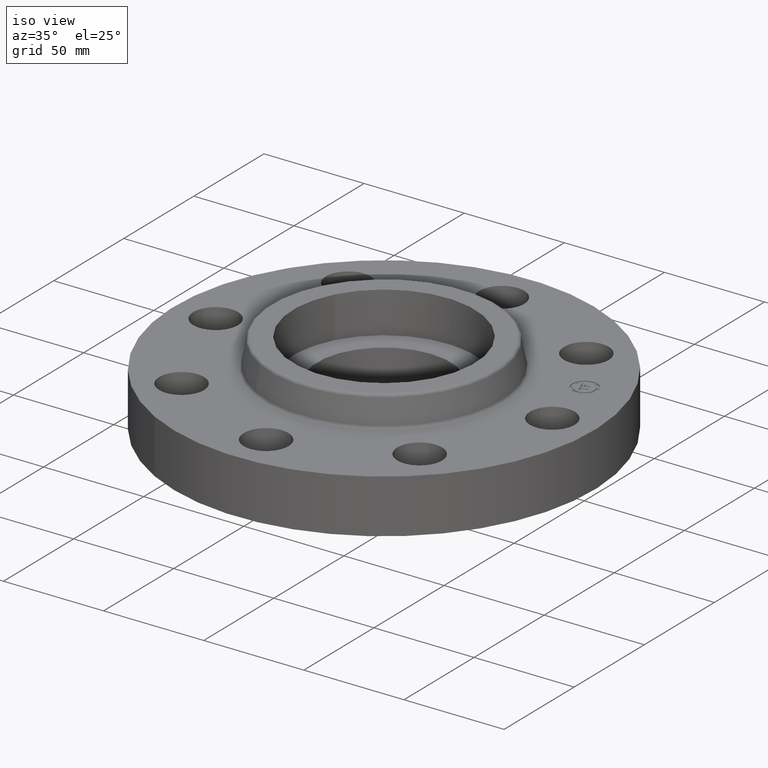
[diagram: clean part render]
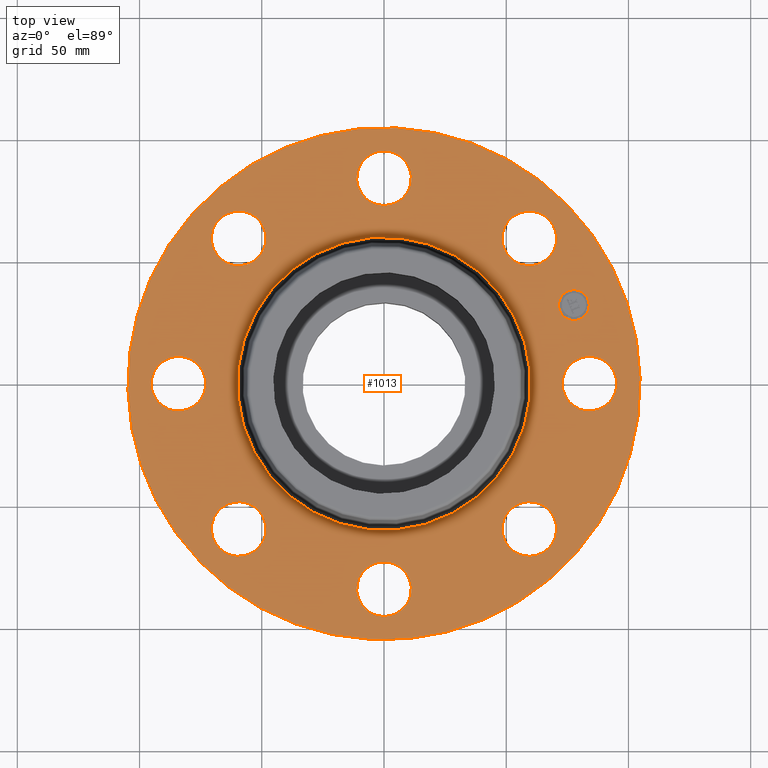
[diagram: tour spotlight — one face highlighted and labeled with its STEP entity id]
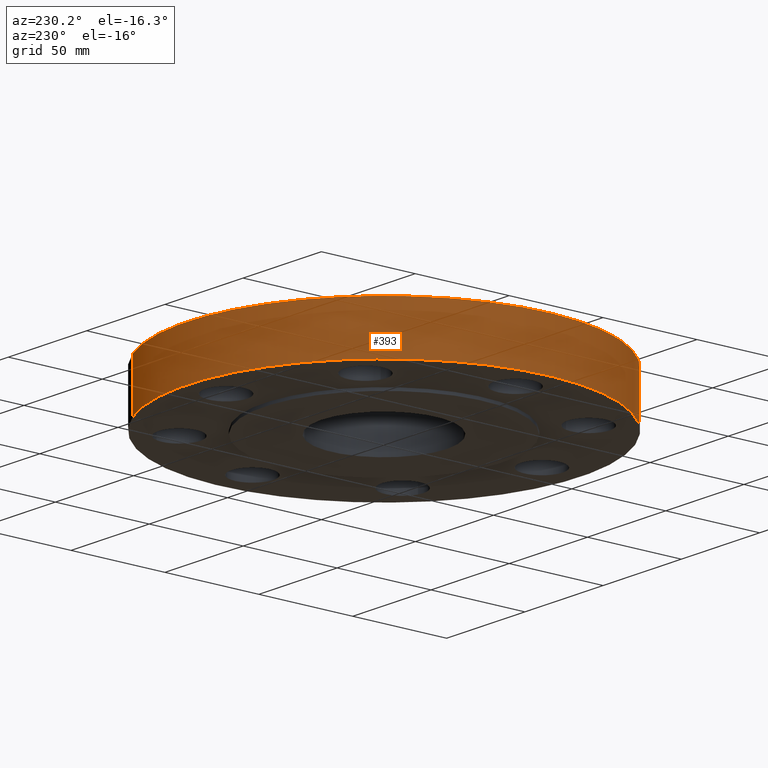
[diagram: tour spotlight — one face highlighted and labeled with its STEP entity id]
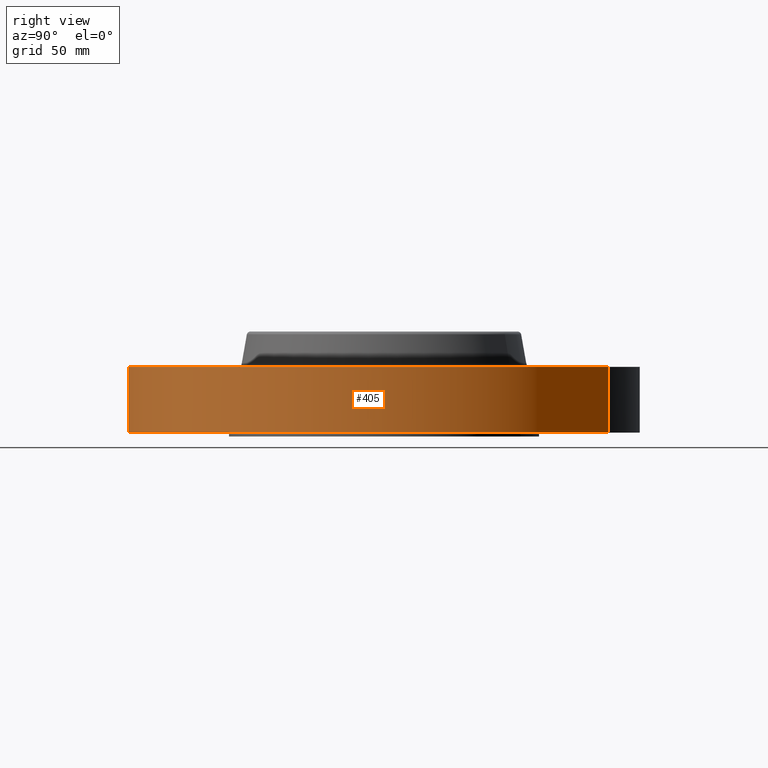
[diagram: tour spotlight — one face highlighted and labeled with its STEP entity id]
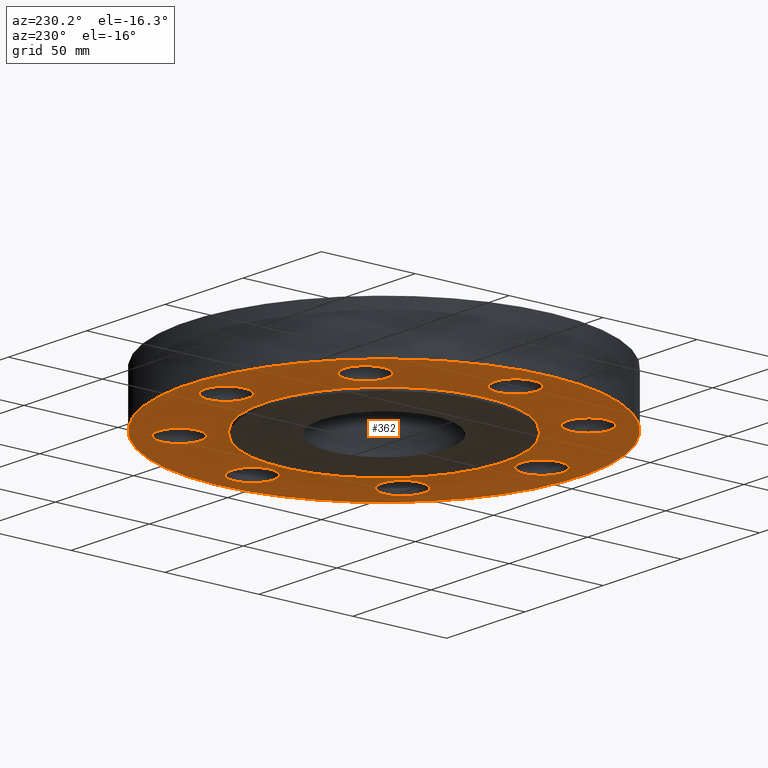
[diagram: tour spotlight — one face highlighted and labeled with its STEP entity id]
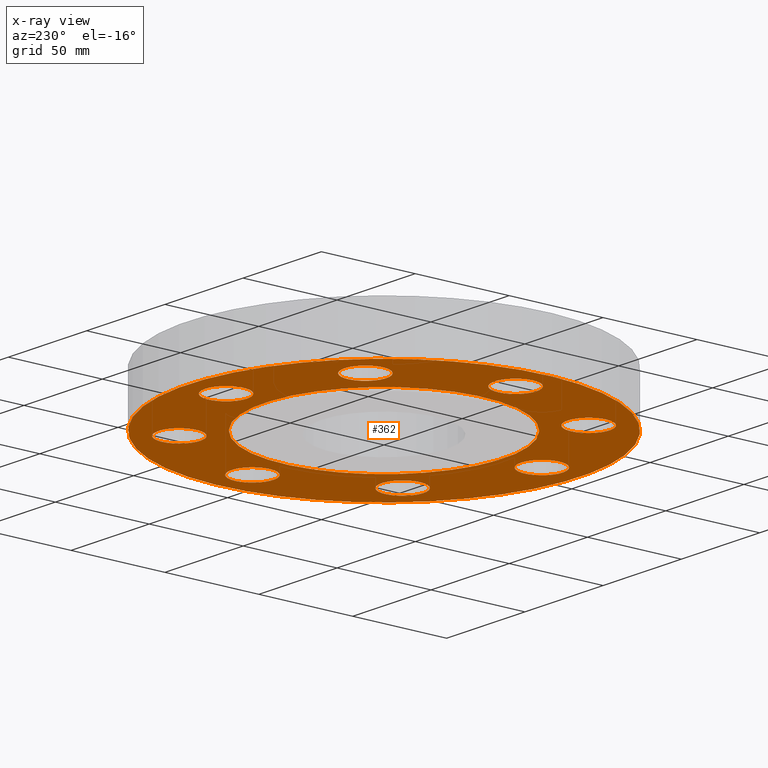
[diagram: x-ray of the same camera — body ghosted, this tour face saturated]
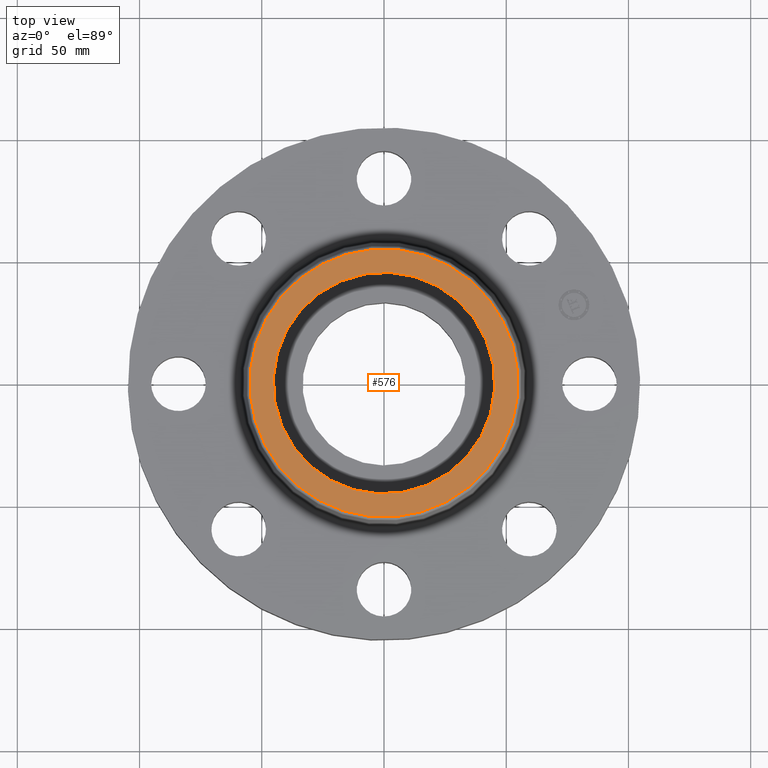
[diagram: tour spotlight — one face highlighted and labeled with its STEP entity id]
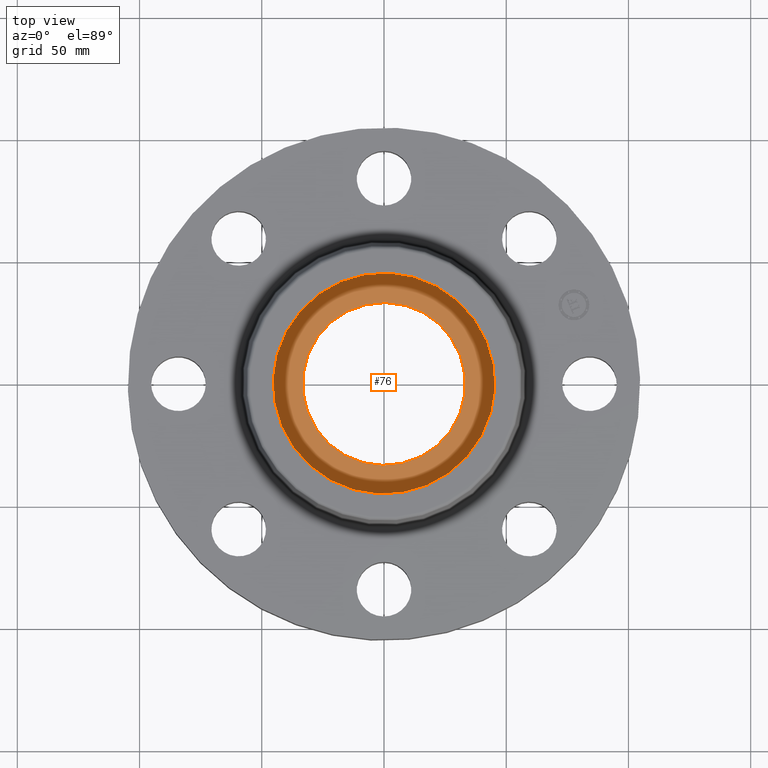
[diagram: tour spotlight — one face highlighted and labeled with its STEP entity id]
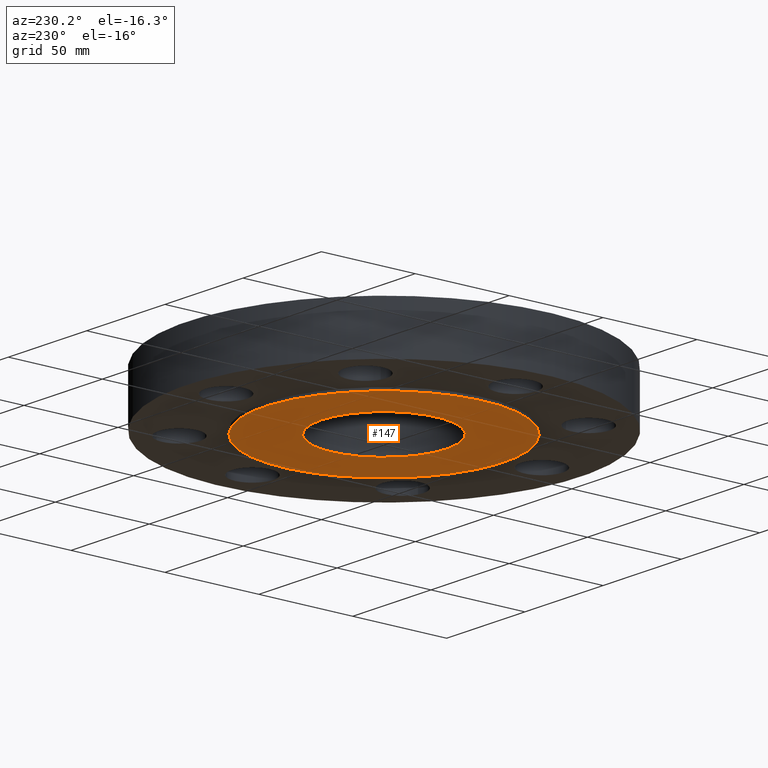
[diagram: tour spotlight — one face highlighted and labeled with its STEP entity id]
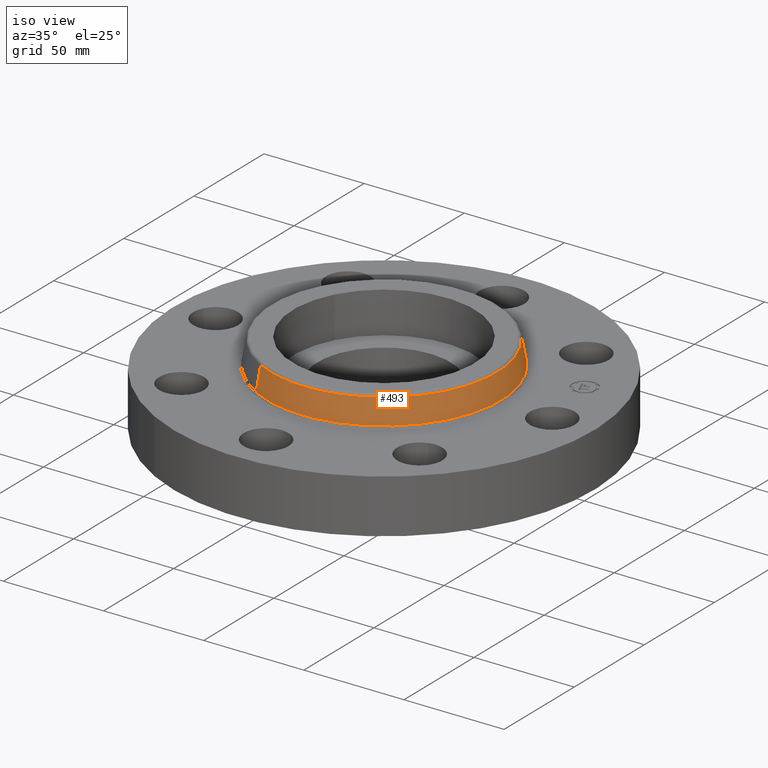
[diagram: tour spotlight — one face highlighted and labeled with its STEP entity id]
A machine part: a face-by-face anatomy tour. The part has 420 B-rep faces; the first image is the clean iso view, then the 8 largest visible faces are spotlighted one at a time (largest first), each with its STEP entity span.

Face 1 — top view, entity #1013. In plain terms, the highlighted planar face has unit normal (0, 0, -1).
Definition (entity closure, byte-faithful):
#377=AXIS2_PLACEMENT_3D('Circle Axis2P3D',#375,#376,$) ;
#396=AXIS2_PLACEMENT_3D('Circle Axis2P3D',#394,#395,$) ;
#413=AXIS2_PLACEMENT_3D('Circle Axis2P3D',#411,#412,$) ;
#448=AXIS2_PLACEMENT_3D('Circle Axis2P3D',#446,#447,$) ;
#598=AXIS2_PLACEMENT_3D('Circle Axis2P3D',#596,#597,$) ;
#610=AXIS2_PLACEMENT_3D('Circle Axis2P3D',#608,#609,$) ;
#641=AXIS2_PLACEMENT_3D('Circle Axis2P3D',#639,#640,$) ;
#653=AXIS2_PLACEMENT_3D('Circle Axis2P3D',#651,#652,$) ;
#684=AXIS2_PLACEMENT_3D('Circle Axis2P3D',#682,#683,$) ;
#696=AXIS2_PLACEMENT_3D('Circle Axis2P3D',#694,#695,$) ;
#727=AXIS2_PLACEMENT_3D('Circle Axis2P3D',#725,#726,$) ;
#739=AXIS2_PLACEMENT_3D('Circle Axis2P3D',#737,#738,$) ;
#770=AXIS2_PLACEMENT_3D('Circle Axis2P3D',#768,#769,$) ;
#782=AXIS2_PLACEMENT_3D('Circle Axis2P3D',#780,#781,$) ;
#813=AXIS2_PLACEMENT_3D('Circle Axis2P3D',#811,#812,$) ;
#825=AXIS2_PLACEMENT_3D('Circle Axis2P3D',#823,#824,$) ;
#856=AXIS2_PLACEMENT_3D('Circle Axis2P3D',#854,#855,$) ;
#868=AXIS2_PLACEMENT_3D('Circle Axis2P3D',#866,#867,$) ;
#899=AXIS2_PLACEMENT_3D('Circle Axis2P3D',#897,#898,$) ;
#911=AXIS2_PLACEMENT_3D('Circle Axis2P3D',#909,#910,$) ;
#953=AXIS2_PLACEMENT_3D('Plane Axis2P3D',#950,#951,#952) ;
#997=AXIS2_PLACEMENT_3D('Circle Axis2P3D',#995,#996,$) ;
#1006=AXIS2_PLACEMENT_3D('Circle Axis2P3D',#1004,#1005,$) ;
#372=CARTESIAN_POINT('Vertex',(-1.97763034675,-3.62002806781,1.06)) ;
#375=CARTESIAN_POINT('Axis2P3D Location',(0.,0.,1.06)) ;
#379=CARTESIAN_POINT('Vertex',(1.97763034675,3.62002806781,1.06)) ;
#394=CARTESIAN_POINT('Axis2P3D Location',(0.,0.,1.06)) ;
#411=CARTESIAN_POINT('Axis2P3D Location',(0.,0.,1.06)) ;
#415=CARTESIAN_POINT('Vertex',(1.13161014174,2.07139847022,1.06)) ;
#417=CARTESIAN_POINT('Vertex',(-1.13161014174,-2.07139847022,1.06)) ;
#446=CARTESIAN_POINT('Axis2P3D Location',(0.,0.,1.06)) ;
#586=CARTESIAN_POINT('Vertex',(2.76272528293,2.46440083944,1.06)) ;
#593=CARTESIAN_POINT('Vertex',(1.91832160854,2.21664605203,1.06)) ;
#596=CARTESIAN_POINT('Axis2P3D Location',(2.34052344574,2.34052344574,1.06)) ;
#608=CARTESIAN_POINT('Axis2P3D Location',(2.34052344574,2.34052344574,1.06)) ;
#629=CARTESIAN_POINT('Vertex',(0.210947236987,3.69613632725,1.06)) ;
#636=CARTESIAN_POINT('Vertex',(-0.210947236987,2.92386367278,1.06)) ;
#639=CARTESIAN_POINT('Axis2P3D Location',(-6.08037135779E-016,3.31000000001,1.06)) ;
#651=CARTESIAN_POINT('Axis2P3D Location',(-6.08037135779E-016,3.31000000001,1.06)) ;
#672=CARTESIAN_POINT('Vertex',(-2.46440083944,2.76272528293,1.06)) ;
#679=CARTESIAN_POINT('Vertex',(-2.21664605203,1.91832160854,1.06)) ;
#682=CARTESIAN_POINT('Axis2P3D Location',(-2.34052344574,2.34052344574,1.06)) ;
#694=CARTESIAN_POINT('Axis2P3D Location',(-2.34052344574,2.34052344574,1.06)) ;
#715=CARTESIAN_POINT('Vertex',(-3.69613632725,0.210947236987,1.06)) ;
#722=CARTESIAN_POINT('Vertex',(-2.92386367278,-0.210947236987,1.06)) ;
#725=CARTESIAN_POINT('Axis2P3D Location',(-3.31000000001,-4.05358090519E-016,1.06)) ;
#737=CARTESIAN_POINT('Axis2P3D Location',(-3.31000000001,-4.05358090519E-016,1.06)) ;
#758=CARTESIAN_POINT('Vertex',(-2.76272528293,-2.46440083944,1.06)) ;
#765=CARTESIAN_POINT('Vertex',(-1.91832160854,-2.21664605203,1.06)) ;
#768=CARTESIAN_POINT('Axis2P3D Location',(-2.34052344574,-2.34052344574,1.06)) ;
#780=CARTESIAN_POINT('Axis2P3D Location',(-2.34052344574,-2.34052344574,1.06)) ;
#801=CARTESIAN_POINT('Vertex',(-0.210947236987,-3.69613632725,1.06)) ;
#808=CARTESIAN_POINT('Vertex',(0.210947236987,-2.92386367278,1.06)) ;
#811=CARTESIAN_POINT('Axis2P3D Location',(-3.56803423843E-016,-3.31000000001,1.06)) ;
#823=CARTESIAN_POINT('Axis2P3D Location',(-3.56803423843E-016,-3.31000000001,1.06)) ;
#844=CARTESIAN_POINT('Vertex',(2.46440083944,-2.76272528293,1.06)) ;
#851=CARTESIAN_POINT('Vertex',(2.21664605203,-1.91832160854,1.06)) ;
#854=CARTESIAN_POINT('Axis2P3D Location',(2.34052344574,-2.34052344574,1.06)) ;
#866=CARTESIAN_POINT('Axis2P3D Location',(2.34052344574,-2.34052344574,1.06)) ;
#887=CARTESIAN_POINT('Vertex',(2.92386367278,0.210947236987,1.06)) ;
#894=CARTESIAN_POINT('Vertex',(3.69613632725,-0.210947236987,1.06)) ;
#897=CARTESIAN_POINT('Axis2P3D Location',(3.31000000001,0.,1.06)) ;
#909=CARTESIAN_POINT('Axis2P3D Location',(3.31000000001,0.,1.06)) ;
#950=CARTESIAN_POINT('Axis2P3D Location',(0.,4.12500000002,1.06)) ;
#995=CARTESIAN_POINT('Axis2P3D Location',(3.05804125262,1.26668216113,1.06)) ;
#999=CARTESIAN_POINT('Vertex',(2.96332710311,1.49534234543,1.06)) ;
#1001=CARTESIAN_POINT('Vertex',(3.15275540214,1.03802197684,1.06)) ;
#1004=CARTESIAN_POINT('Axis2P3D Location',(3.05804125262,1.26668216113,1.06)) ;
#376=DIRECTION('Axis2P3D Direction',(0.,0.,-0.0393700787402)) ;
#395=DIRECTION('Axis2P3D Direction',(0.,0.,-0.0393700787402)) ;
#412=DIRECTION('Axis2P3D Direction',(0.,0.,-0.0393700787402)) ;
#447=DIRECTION('Axis2P3D Direction',(0.,0.,-0.0393700787402)) ;
#597=DIRECTION('Axis2P3D Direction',(0.,0.,-0.0393700787402)) ;
#609=DIRECTION('Axis2P3D Direction',(0.,0.,-0.0393700787402)) ;
#640=DIRECTION('Axis2P3D Direction',(0.,0.,-0.0393700787402)) ;
#652=DIRECTION('Axis2P3D Direction',(0.,0.,-0.0393700787402)) ;
#683=DIRECTION('Axis2P3D Direction',(0.,0.,-0.0393700787402)) ;
#695=DIRECTION('Axis2P3D Direction',(0.,0.,-0.0393700787402)) ;
#726=DIRECTION('Axis2P3D Direction',(-0.,0.,-0.0393700787402)) ;
#738=DIRECTION('Axis2P3D Direction',(-0.,0.,-0.0393700787402)) ;
#769=DIRECTION('Axis2P3D Direction',(-0.,0.,-0.0393700787402)) ;
#781=DIRECTION('Axis2P3D Direction',(-0.,0.,-0.0393700787402)) ;
#812=DIRECTION('Axis2P3D Direction',(0.,-0.,-0.0393700787402)) ;
#824=DIRECTION('Axis2P3D Direction',(0.,-0.,-0.0393700787402)) ;
#855=DIRECTION('Axis2P3D Direction',(0.,-0.,-0.0393700787402)) ;
#867=DIRECTION('Axis2P3D Direction',(0.,-0.,-0.0393700787402)) ;
#898=DIRECTION('Axis2P3D Direction',(0.,-0.,-0.0393700787402)) ;
#910=DIRECTION('Axis2P3D Direction',(0.,-0.,-0.0393700787402)) ;
#951=DIRECTION('Axis2P3D Direction',(0.,0.,-0.0393700787402)) ;
#952=DIRECTION('Axis2P3D XDirection',(0.0393700787402,0.,0.)) ;
#996=DIRECTION('Axis2P3D Direction',(0.,0.,-0.0393700787402)) ;
#1005=DIRECTION('Axis2P3D Direction',(0.,0.,-0.0393700787402)) ;
#956=ORIENTED_EDGE('',*,*,#398,.F.) ;
#957=ORIENTED_EDGE('',*,*,#381,.F.) ;
#960=ORIENTED_EDGE('',*,*,#901,.T.) ;
#961=ORIENTED_EDGE('',*,*,#913,.T.) ;
#964=ORIENTED_EDGE('',*,*,#450,.T.) ;
#965=ORIENTED_EDGE('',*,*,#419,.T.) ;
#968=ORIENTED_EDGE('',*,*,#858,.T.) ;
#969=ORIENTED_EDGE('',*,*,#870,.T.) ;
#972=ORIENTED_EDGE('',*,*,#815,.T.) ;
#973=ORIENTED_EDGE('',*,*,#827,.T.) ;
#976=ORIENTED_EDGE('',*,*,#772,.T.) ;
#977=ORIENTED_EDGE('',*,*,#784,.T.) ;
#980=ORIENTED_EDGE('',*,*,#729,.T.) ;
#981=ORIENTED_EDGE('',*,*,#741,.T.) ;
#984=ORIENTED_EDGE('',*,*,#686,.T.) ;
#985=ORIENTED_EDGE('',*,*,#698,.T.) ;
#988=ORIENTED_EDGE('',*,*,#643,.T.) ;
#989=ORIENTED_EDGE('',*,*,#655,.T.) ;
#992=ORIENTED_EDGE('',*,*,#600,.T.) ;
#993=ORIENTED_EDGE('',*,*,#612,.T.) ;
#1010=ORIENTED_EDGE('',*,*,#1003,.T.) ;
#1011=ORIENTED_EDGE('',*,*,#1008,.T.) ;
#962=FACE_BOUND('',#959,.T.) ;
#966=FACE_BOUND('',#963,.T.) ;
#970=FACE_BOUND('',#967,.T.) ;
#974=FACE_BOUND('',#971,.T.) ;
#978=FACE_BOUND('',#975,.T.) ;
#982=FACE_BOUND('',#979,.T.) ;
#986=FACE_BOUND('',#983,.T.) ;
#990=FACE_BOUND('',#987,.T.) ;
#994=FACE_BOUND('',#991,.T.) ;
#1012=FACE_BOUND('',#1009,.T.) ;
#1013=ADVANCED_FACE('PartBody',(#958,#962,#966,#970,#974,#978,#982,#986,#990,#994,#1012),#954,.F.) ;
#378=CIRCLE('generated circle',#377,4.12500000002) ;
#397=CIRCLE('generated circle',#396,4.12500000002) ;
#414=CIRCLE('generated circle',#413,2.36034597788) ;
#449=CIRCLE('generated circle',#448,2.36034597788) ;
#599=CIRCLE('generated circle',#598,0.440000000002) ;
#611=CIRCLE('generated circle',#610,0.440000000002) ;
#642=CIRCLE('generated circle',#641,0.440000000002) ;
#654=CIRCLE('generated circle',#653,0.440000000002) ;
#685=CIRCLE('generated circle',#684,0.440000000002) ;
#697=CIRCLE('generated circle',#696,0.440000000002) ;
#728=CIRCLE('generated circle',#727,0.440000000002) ;
#740=CIRCLE('generated circle',#739,0.440000000002) ;
#771=CIRCLE('generated circle',#770,0.440000000002) ;
#783=CIRCLE('generated circle',#782,0.440000000002) ;
#814=CIRCLE('generated circle',#813,0.440000000002) ;
#826=CIRCLE('generated circle',#825,0.440000000002) ;
#857=CIRCLE('generated circle',#856,0.440000000002) ;
#869=CIRCLE('generated circle',#868,0.440000000002) ;
#900=CIRCLE('generated circle',#899,0.440000000002) ;
#912=CIRCLE('generated circle',#911,0.440000000002) ;
#998=CIRCLE('generated circle',#997,0.247500000001) ;
#1007=CIRCLE('generated circle',#1006,0.247500000001) ;
#381=EDGE_CURVE('',#373,#380,#378,.T.) ;
#398=EDGE_CURVE('',#380,#373,#397,.T.) ;
#419=EDGE_CURVE('',#416,#418,#414,.T.) ;
#450=EDGE_CURVE('',#418,#416,#449,.T.) ;
#600=EDGE_CURVE('',#587,#594,#599,.T.) ;
#612=EDGE_CURVE('',#594,#587,#611,.T.) ;
#643=EDGE_CURVE('',#630,#637,#642,.T.) ;
#655=EDGE_CURVE('',#637,#630,#654,.T.) ;
#686=EDGE_CURVE('',#673,#680,#685,.T.) ;
#698=EDGE_CURVE('',#680,#673,#697,.T.) ;
#729=EDGE_CURVE('',#716,#723,#728,.T.) ;
#741=EDGE_CURVE('',#723,#716,#740,.T.) ;
#772=EDGE_CURVE('',#759,#766,#771,.T.) ;
#784=EDGE_CURVE('',#766,#759,#783,.T.) ;
#815=EDGE_CURVE('',#802,#809,#814,.T.) ;
#827=EDGE_CURVE('',#809,#802,#826,.T.) ;
#858=EDGE_CURVE('',#845,#852,#857,.T.) ;
#870=EDGE_CURVE('',#852,#845,#869,.T.) ;
#901=EDGE_CURVE('',#888,#895,#900,.T.) ;
#913=EDGE_CURVE('',#895,#888,#912,.T.) ;
#1003=EDGE_CURVE('',#1000,#1002,#998,.T.) ;
#1008=EDGE_CURVE('',#1002,#1000,#1007,.T.) ;
#955=EDGE_LOOP('',(#956,#957)) ;
#959=EDGE_LOOP('',(#960,#961)) ;
#963=EDGE_LOOP('',(#964,#965)) ;
#967=EDGE_LOOP('',(#968,#969)) ;
#971=EDGE_LOOP('',(#972,#973)) ;
#975=EDGE_LOOP('',(#976,#977)) ;
#979=EDGE_LOOP('',(#980,#981)) ;
#983=EDGE_LOOP('',(#984,#985)) ;
#987=EDGE_LOOP('',(#988,#989)) ;
#991=EDGE_LOOP('',(#992,#993)) ;
#1009=EDGE_LOOP('',(#1010,#1011)) ;
#958=FACE_OUTER_BOUND('',#955,.T.) ;
#954=PLANE('',#953) ;
#373=VERTEX_POINT('',#372) ;
#380=VERTEX_POINT('',#379) ;
#416=VERTEX_POINT('',#415) ;
#418=VERTEX_POINT('',#417) ;
#587=VERTEX_POINT('',#586) ;
#594=VERTEX_POINT('',#593) ;
#630=VERTEX_POINT('',#629) ;
#637=VERTEX_POINT('',#636) ;
#673=VERTEX_POINT('',#672) ;
#680=VERTEX_POINT('',#679) ;
#716=VERTEX_POINT('',#715) ;
#723=VERTEX_POINT('',#722) ;
#759=VERTEX_POINT('',#758) ;
#766=VERTEX_POINT('',#765) ;
#802=VERTEX_POINT('',#801) ;
#809=VERTEX_POINT('',#808) ;
#845=VERTEX_POINT('',#844) ;
#852=VERTEX_POINT('',#851) ;
#888=VERTEX_POINT('',#887) ;
#895=VERTEX_POINT('',#894) ;
#1000=VERTEX_POINT('',#999) ;
#1002=VERTEX_POINT('',#1001) ;

Face 2 — auxiliary view, entity #393. In plain terms, the highlighted cylindrical surface (partial cylindrical patch) has radius 104.775 mm, axis along (0, 0, -1).
Definition (entity closure, byte-faithful):
#198=AXIS2_PLACEMENT_3D('Circle Axis2P3D',#196,#197,$) ;
#366=AXIS2_PLACEMENT_3D('Cylinder Axis2P3D',#363,#364,#365) ;
#377=AXIS2_PLACEMENT_3D('Circle Axis2P3D',#375,#376,$) ;
#196=CARTESIAN_POINT('Axis2P3D Location',(0.,0.,0.)) ;
#200=CARTESIAN_POINT('Vertex',(-1.97763034675,-3.62002806781,5.59482469102E-016)) ;
#202=CARTESIAN_POINT('Vertex',(1.97763034675,3.62002806781,5.59482469102E-016)) ;
#363=CARTESIAN_POINT('Axis2P3D Location',(0.,0.,0.783750000003)) ;
#368=CARTESIAN_POINT('Line Origine',(-1.97763034675,-3.62002806781,0.530000000002)) ;
#372=CARTESIAN_POINT('Vertex',(-1.97763034675,-3.62002806781,1.06)) ;
#375=CARTESIAN_POINT('Axis2P3D Location',(0.,0.,1.06)) ;
#379=CARTESIAN_POINT('Vertex',(1.97763034675,3.62002806781,1.06)) ;
#382=CARTESIAN_POINT('Line Origine',(1.97763034675,3.62002806781,0.530000000002)) ;
#197=DIRECTION('Axis2P3D Direction',(0.,0.,-0.0393700787402)) ;
#364=DIRECTION('Axis2P3D Direction',(0.,0.,-0.0393700787402)) ;
#365=DIRECTION('Axis2P3D XDirection',(0.0188750212049,0.0345504945626,0.)) ;
#369=DIRECTION('Vector Direction',(0.,0.,-0.0393700787402)) ;
#376=DIRECTION('Axis2P3D Direction',(0.,0.,-0.0393700787402)) ;
#383=DIRECTION('Vector Direction',(0.,0.,-0.0393700787402)) ;
#370=VECTOR('Line Direction',#369,0.0393700787402) ;
#384=VECTOR('Line Direction',#383,0.0393700787402) ;
#388=ORIENTED_EDGE('',*,*,#204,.F.) ;
#389=ORIENTED_EDGE('',*,*,#374,.T.) ;
#390=ORIENTED_EDGE('',*,*,#381,.T.) ;
#391=ORIENTED_EDGE('',*,*,#386,.F.) ;
#393=ADVANCED_FACE('PartBody',(#392),#367,.T.) ;
#199=CIRCLE('generated circle',#198,4.12500000002) ;
#378=CIRCLE('generated circle',#377,4.12500000002) ;
#367=CYLINDRICAL_SURFACE('generated cylinder',#366,4.12500000002) ;
#204=EDGE_CURVE('',#201,#203,#199,.T.) ;
#374=EDGE_CURVE('',#201,#373,#371,.F.) ;
#381=EDGE_CURVE('',#373,#380,#378,.T.) ;
#386=EDGE_CURVE('',#203,#380,#385,.F.) ;
#387=EDGE_LOOP('',(#388,#389,#390,#391)) ;
#392=FACE_OUTER_BOUND('',#387,.T.) ;
#371=LINE('Line',#368,#370) ;
#385=LINE('Line',#382,#384) ;
#201=VERTEX_POINT('',#200) ;
#203=VERTEX_POINT('',#202) ;
#373=VERTEX_POINT('',#372) ;
#380=VERTEX_POINT('',#379) ;

Face 3 — right view, entity #405. In plain terms, the highlighted cylindrical surface (partial cylindrical patch) has radius 104.775 mm, axis along (0, 0, -1).
Definition (entity closure, byte-faithful):
#207=AXIS2_PLACEMENT_3D('Circle Axis2P3D',#205,#206,$) ;
#366=AXIS2_PLACEMENT_3D('Cylinder Axis2P3D',#363,#364,#365) ;
#396=AXIS2_PLACEMENT_3D('Circle Axis2P3D',#394,#395,$) ;
#200=CARTESIAN_POINT('Vertex',(-1.97763034675,-3.62002806781,5.59482469102E-016)) ;
#202=CARTESIAN_POINT('Vertex',(1.97763034675,3.62002806781,5.59482469102E-016)) ;
#205=CARTESIAN_POINT('Axis2P3D Location',(0.,0.,0.)) ;
#363=CARTESIAN_POINT('Axis2P3D Location',(0.,0.,0.783750000003)) ;
#368=CARTESIAN_POINT('Line Origine',(-1.97763034675,-3.62002806781,0.530000000002)) ;
#372=CARTESIAN_POINT('Vertex',(-1.97763034675,-3.62002806781,1.06)) ;
#379=CARTESIAN_POINT('Vertex',(1.97763034675,3.62002806781,1.06)) ;
#382=CARTESIAN_POINT('Line Origine',(1.97763034675,3.62002806781,0.530000000002)) ;
#394=CARTESIAN_POINT('Axis2P3D Location',(0.,0.,1.06)) ;
#206=DIRECTION('Axis2P3D Direction',(0.,0.,-0.0393700787402)) ;
#364=DIRECTION('Axis2P3D Direction',(0.,0.,-0.0393700787402)) ;
#365=DIRECTION('Axis2P3D XDirection',(0.0188750212049,0.0345504945626,0.)) ;
#369=DIRECTION('Vector Direction',(0.,0.,-0.0393700787402)) ;
#383=DIRECTION('Vector Direction',(0.,0.,-0.0393700787402)) ;
#395=DIRECTION('Axis2P3D Direction',(0.,0.,-0.0393700787402)) ;
#370=VECTOR('Line Direction',#369,0.0393700787402) ;
#384=VECTOR('Line Direction',#383,0.0393700787402) ;
#400=ORIENTED_EDGE('',*,*,#209,.F.) ;
#401=ORIENTED_EDGE('',*,*,#386,.T.) ;
#402=ORIENTED_EDGE('',*,*,#398,.T.) ;
#403=ORIENTED_EDGE('',*,*,#374,.F.) ;
#405=ADVANCED_FACE('PartBody',(#404),#367,.T.) ;
#208=CIRCLE('generated circle',#207,4.12500000002) ;
#397=CIRCLE('generated circle',#396,4.12500000002) ;
#367=CYLINDRICAL_SURFACE('generated cylinder',#366,4.12500000002) ;
#209=EDGE_CURVE('',#203,#201,#208,.T.) ;
#374=EDGE_CURVE('',#201,#373,#371,.F.) ;
#386=EDGE_CURVE('',#203,#380,#385,.F.) ;
#398=EDGE_CURVE('',#380,#373,#397,.T.) ;
#399=EDGE_LOOP('',(#400,#401,#402,#403)) ;
#404=FACE_OUTER_BOUND('',#399,.T.) ;
#371=LINE('Line',#368,#370) ;
#385=LINE('Line',#382,#384) ;
#201=VERTEX_POINT('',#200) ;
#203=VERTEX_POINT('',#202) ;
#373=VERTEX_POINT('',#372) ;
#380=VERTEX_POINT('',#379) ;

Face 4 — auxiliary view, entity #362. An x-ray twin of the same camera follows (body ghosted, this face saturated) — the face is partly hidden behind the body. In plain terms, the highlighted planar face has unit normal (0, 0, -1).
Definition (entity closure, byte-faithful):
#162=AXIS2_PLACEMENT_3D('Circle Axis2P3D',#160,#161,$) ;
#181=AXIS2_PLACEMENT_3D('Circle Axis2P3D',#179,#180,$) ;
#194=AXIS2_PLACEMENT_3D('Plane Axis2P3D',#191,#192,#193) ;
#198=AXIS2_PLACEMENT_3D('Circle Axis2P3D',#196,#197,$) ;
#207=AXIS2_PLACEMENT_3D('Circle Axis2P3D',#205,#206,$) ;
#216=AXIS2_PLACEMENT_3D('Circle Axis2P3D',#214,#215,$) ;
#225=AXIS2_PLACEMENT_3D('Circle Axis2P3D',#223,#224,$) ;
#238=AXIS2_PLACEMENT_3D('Circle Axis2P3D',#236,#237,$) ;
#247=AXIS2_PLACEMENT_3D('Circle Axis2P3D',#245,#246,$) ;
#256=AXIS2_PLACEMENT_3D('Circle Axis2P3D',#254,#255,$) ;
#265=AXIS2_PLACEMENT_3D('Circle Axis2P3D',#263,#264,$) ;
#274=AXIS2_PLACEMENT_3D('Circle Axis2P3D',#272,#273,$) ;
#283=AXIS2_PLACEMENT_3D('Circle Axis2P3D',#281,#282,$) ;
#292=AXIS2_PLACEMENT_3D('Circle Axis2P3D',#290,#291,$) ;
#301=AXIS2_PLACEMENT_3D('Circle Axis2P3D',#299,#300,$) ;
#310=AXIS2_PLACEMENT_3D('Circle Axis2P3D',#308,#309,$) ;
#319=AXIS2_PLACEMENT_3D('Circle Axis2P3D',#317,#318,$) ;
#328=AXIS2_PLACEMENT_3D('Circle Axis2P3D',#326,#327,$) ;
#337=AXIS2_PLACEMENT_3D('Circle Axis2P3D',#335,#336,$) ;
#346=AXIS2_PLACEMENT_3D('Circle Axis2P3D',#344,#345,$) ;
#355=AXIS2_PLACEMENT_3D('Circle Axis2P3D',#353,#354,$) ;
#157=CARTESIAN_POINT('Vertex',(-1.19856384652,-2.19395640473,4.19611851827E-016)) ;
#160=CARTESIAN_POINT('Axis2P3D Location',(0.,0.,4.19611851827E-016)) ;
#164=CARTESIAN_POINT('Vertex',(1.19856384652,2.19395640473,4.19611851827E-016)) ;
#179=CARTESIAN_POINT('Axis2P3D Location',(0.,0.,4.19611851827E-016)) ;
#191=CARTESIAN_POINT('Axis2P3D Location',(0.,2.50000000001,0.)) ;
#196=CARTESIAN_POINT('Axis2P3D Location',(0.,0.,0.)) ;
#200=CARTESIAN_POINT('Vertex',(-1.97763034675,-3.62002806781,5.59482469102E-016)) ;
#202=CARTESIAN_POINT('Vertex',(1.97763034675,3.62002806781,5.59482469102E-016)) ;
#205=CARTESIAN_POINT('Axis2P3D Location',(0.,0.,0.)) ;
#214=CARTESIAN_POINT('Axis2P3D Location',(3.31000000001,0.,0.)) ;
#218=CARTESIAN_POINT('Vertex',(3.69613632725,-0.210947236987,0.)) ;
#220=CARTESIAN_POINT('Vertex',(2.92386367278,0.210947236987,0.)) ;
#223=CARTESIAN_POINT('Axis2P3D Location',(3.31000000001,0.,0.)) ;
#236=CARTESIAN_POINT('Axis2P3D Location',(2.34052344574,-2.34052344574,0.)) ;
#240=CARTESIAN_POINT('Vertex',(2.21664605203,-1.91832160854,0.)) ;
#242=CARTESIAN_POINT('Vertex',(2.46440083944,-2.76272528293,0.)) ;
#245=CARTESIAN_POINT('Axis2P3D Location',(2.34052344574,-2.34052344574,0.)) ;
#254=CARTESIAN_POINT('Axis2P3D Location',(-4.54579506146E-016,-3.31000000001,0.)) ;
#258=CARTESIAN_POINT('Vertex',(0.210947236987,-2.92386367278,0.)) ;
#260=CARTESIAN_POINT('Vertex',(-0.210947236987,-3.69613632725,0.)) ;
#263=CARTESIAN_POINT('Axis2P3D Location',(-5.24514814784E-016,-3.31000000001,0.)) ;
#272=CARTESIAN_POINT('Axis2P3D Location',(-2.34052344574,-2.34052344574,0.)) ;
#276=CARTESIAN_POINT('Vertex',(-1.91832160854,-2.21664605203,0.)) ;
#278=CARTESIAN_POINT('Vertex',(-2.76272528293,-2.46440083944,0.)) ;
#281=CARTESIAN_POINT('Axis2P3D Location',(-2.34052344574,-2.34052344574,0.)) ;
#290=CARTESIAN_POINT('Axis2P3D Location',(-3.31000000001,-8.39223703654E-016,0.)) ;
#294=CARTESIAN_POINT('Vertex',(-2.92386367278,-0.210947236987,0.)) ;
#296=CARTESIAN_POINT('Vertex',(-3.69613632725,0.210947236987,0.)) ;
#299=CARTESIAN_POINT('Axis2P3D Location',(-3.31000000001,-2.79741234551E-016,0.)) ;
#308=CARTESIAN_POINT('Axis2P3D Location',(-2.34052344574,2.34052344574,0.)) ;
#312=CARTESIAN_POINT('Vertex',(-2.21664605203,1.91832160854,0.)) ;
#314=CARTESIAN_POINT('Vertex',(-2.46440083944,2.76272528293,0.)) ;
#317=CARTESIAN_POINT('Axis2P3D Location',(-2.34052344574,2.34052344574,0.)) ;
#326=CARTESIAN_POINT('Axis2P3D Location',(-6.2941777774E-016,3.31000000001,0.)) ;
#330=CARTESIAN_POINT('Vertex',(-0.210947236987,2.92386367278,0.)) ;
#332=CARTESIAN_POINT('Vertex',(0.210947236987,3.69613632725,0.)) ;
#335=CARTESIAN_POINT('Axis2P3D Location',(-7.34320740697E-016,3.31000000001,0.)) ;
#344=CARTESIAN_POINT('Axis2P3D Location',(2.34052344574,2.34052344574,0.)) ;
#348=CARTESIAN_POINT('Vertex',(1.91832160854,2.21664605203,0.)) ;
#350=CARTESIAN_POINT('Vertex',(2.76272528293,2.46440083944,0.)) ;
#353=CARTESIAN_POINT('Axis2P3D Location',(2.34052344574,2.34052344574,0.)) ;
#161=DIRECTION('Axis2P3D Direction',(0.,0.,-0.0393700787402)) ;
#180=DIRECTION('Axis2P3D Direction',(0.,0.,-0.0393700787402)) ;
#192=DIRECTION('Axis2P3D Direction',(0.,0.,-0.0393700787402)) ;
#193=DIRECTION('Axis2P3D XDirection',(0.0393700787402,0.,0.)) ;
#197=DIRECTION('Axis2P3D Direction',(0.,0.,-0.0393700787402)) ;
#206=DIRECTION('Axis2P3D Direction',(0.,0.,-0.0393700787402)) ;
#215=DIRECTION('Axis2P3D Direction',(0.,0.,-0.0393700787402)) ;
#224=DIRECTION('Axis2P3D Direction',(0.,0.,-0.0393700787402)) ;
#237=DIRECTION('Axis2P3D Direction',(0.,0.,-0.0393700787402)) ;
#246=DIRECTION('Axis2P3D Direction',(0.,0.,-0.0393700787402)) ;
#255=DIRECTION('Axis2P3D Direction',(0.,0.,-0.0393700787402)) ;
#264=DIRECTION('Axis2P3D Direction',(0.,0.,-0.0393700787402)) ;
#273=DIRECTION('Axis2P3D Direction',(0.,0.,-0.0393700787402)) ;
#282=DIRECTION('Axis2P3D Direction',(0.,0.,-0.0393700787402)) ;
#291=DIRECTION('Axis2P3D Direction',(0.,0.,-0.0393700787402)) ;
#300=DIRECTION('Axis2P3D Direction',(0.,0.,-0.0393700787402)) ;
#309=DIRECTION('Axis2P3D Direction',(0.,0.,-0.0393700787402)) ;
#318=DIRECTION('Axis2P3D Direction',(0.,0.,-0.0393700787402)) ;
#327=DIRECTION('Axis2P3D Direction',(0.,0.,-0.0393700787402)) ;
#336=DIRECTION('Axis2P3D Direction',(0.,0.,-0.0393700787402)) ;
#345=DIRECTION('Axis2P3D Direction',(0.,0.,-0.0393700787402)) ;
#354=DIRECTION('Axis2P3D Direction',(0.,0.,-0.0393700787402)) ;
#211=ORIENTED_EDGE('',*,*,#204,.T.) ;
#212=ORIENTED_EDGE('',*,*,#209,.T.) ;
#229=ORIENTED_EDGE('',*,*,#222,.F.) ;
#230=ORIENTED_EDGE('',*,*,#227,.F.) ;
#233=ORIENTED_EDGE('',*,*,#183,.F.) ;
#234=ORIENTED_EDGE('',*,*,#166,.F.) ;
#251=ORIENTED_EDGE('',*,*,#244,.F.) ;
#252=ORIENTED_EDGE('',*,*,#249,.F.) ;
#269=ORIENTED_EDGE('',*,*,#262,.F.) ;
#270=ORIENTED_EDGE('',*,*,#267,.F.) ;
#287=ORIENTED_EDGE('',*,*,#280,.F.) ;
#288=ORIENTED_EDGE('',*,*,#285,.F.) ;
#305=ORIENTED_EDGE('',*,*,#298,.F.) ;
#306=ORIENTED_EDGE('',*,*,#303,.F.) ;
#323=ORIENTED_EDGE('',*,*,#316,.F.) ;
#324=ORIENTED_EDGE('',*,*,#321,.F.) ;
#341=ORIENTED_EDGE('',*,*,#334,.F.) ;
#342=ORIENTED_EDGE('',*,*,#339,.F.) ;
#359=ORIENTED_EDGE('',*,*,#352,.F.) ;
#360=ORIENTED_EDGE('',*,*,#357,.F.) ;
#231=FACE_BOUND('',#228,.T.) ;
#235=FACE_BOUND('',#232,.T.) ;
#253=FACE_BOUND('',#250,.T.) ;
#271=FACE_BOUND('',#268,.T.) ;
#289=FACE_BOUND('',#286,.T.) ;
#307=FACE_BOUND('',#304,.T.) ;
#325=FACE_BOUND('',#322,.T.) ;
#343=FACE_BOUND('',#340,.T.) ;
#361=FACE_BOUND('',#358,.T.) ;
#362=ADVANCED_FACE('PartBody',(#213,#231,#235,#253,#271,#289,#307,#325,#343,#361),#195,.T.) ;
#163=CIRCLE('generated circle',#162,2.50000000001) ;
#182=CIRCLE('generated circle',#181,2.50000000001) ;
#199=CIRCLE('generated circle',#198,4.12500000002) ;
#208=CIRCLE('generated circle',#207,4.12500000002) ;
#217=CIRCLE('generated circle',#216,0.440000000002) ;
#226=CIRCLE('generated circle',#225,0.440000000002) ;
#239=CIRCLE('generated circle',#238,0.440000000002) ;
#248=CIRCLE('generated circle',#247,0.440000000002) ;
#257=CIRCLE('generated circle',#256,0.440000000002) ;
#266=CIRCLE('generated circle',#265,0.440000000002) ;
#275=CIRCLE('generated circle',#274,0.440000000002) ;
#284=CIRCLE('generated circle',#283,0.440000000002) ;
#293=CIRCLE('generated circle',#292,0.440000000002) ;
#302=CIRCLE('generated circle',#301,0.440000000002) ;
#311=CIRCLE('generated circle',#310,0.440000000002) ;
#320=CIRCLE('generated circle',#319,0.440000000002) ;
#329=CIRCLE('generated circle',#328,0.440000000002) ;
#338=CIRCLE('generated circle',#337,0.440000000002) ;
#347=CIRCLE('generated circle',#346,0.440000000002) ;
#356=CIRCLE('generated circle',#355,0.440000000002) ;
#166=EDGE_CURVE('',#158,#165,#163,.T.) ;
#183=EDGE_CURVE('',#165,#158,#182,.T.) ;
#204=EDGE_CURVE('',#201,#203,#199,.T.) ;
#209=EDGE_CURVE('',#203,#201,#208,.T.) ;
#222=EDGE_CURVE('',#219,#221,#217,.T.) ;
#227=EDGE_CURVE('',#221,#219,#226,.T.) ;
#244=EDGE_CURVE('',#241,#243,#239,.T.) ;
#249=EDGE_CURVE('',#243,#241,#248,.T.) ;
#262=EDGE_CURVE('',#259,#261,#257,.T.) ;
#267=EDGE_CURVE('',#261,#259,#266,.T.) ;
#280=EDGE_CURVE('',#277,#279,#275,.T.) ;
#285=EDGE_CURVE('',#279,#277,#284,.T.) ;
#298=EDGE_CURVE('',#295,#297,#293,.T.) ;
#303=EDGE_CURVE('',#297,#295,#302,.T.) ;
#316=EDGE_CURVE('',#313,#315,#311,.T.) ;
#321=EDGE_CURVE('',#315,#313,#320,.T.) ;
#334=EDGE_CURVE('',#331,#333,#329,.T.) ;
#339=EDGE_CURVE('',#333,#331,#338,.T.) ;
#352=EDGE_CURVE('',#349,#351,#347,.T.) ;
#357=EDGE_CURVE('',#351,#349,#356,.T.) ;
#210=EDGE_LOOP('',(#211,#212)) ;
#228=EDGE_LOOP('',(#229,#230)) ;
#232=EDGE_LOOP('',(#233,#234)) ;
#250=EDGE_LOOP('',(#251,#252)) ;
#268=EDGE_LOOP('',(#269,#270)) ;
#286=EDGE_LOOP('',(#287,#288)) ;
#304=EDGE_LOOP('',(#305,#306)) ;
#322=EDGE_LOOP('',(#323,#324)) ;
#340=EDGE_LOOP('',(#341,#342)) ;
#358=EDGE_LOOP('',(#359,#360)) ;
#213=FACE_OUTER_BOUND('',#210,.T.) ;
#195=PLANE('',#194) ;
#158=VERTEX_POINT('',#157) ;
#165=VERTEX_POINT('',#164) ;
#201=VERTEX_POINT('',#200) ;
#203=VERTEX_POINT('',#202) ;
#219=VERTEX_POINT('',#218) ;
#221=VERTEX_POINT('',#220) ;
#241=VERTEX_POINT('',#240) ;
#243=VERTEX_POINT('',#242) ;
#259=VERTEX_POINT('',#258) ;
#261=VERTEX_POINT('',#260) ;
#277=VERTEX_POINT('',#276) ;
#279=VERTEX_POINT('',#278) ;
#295=VERTEX_POINT('',#294) ;
#297=VERTEX_POINT('',#296) ;
#313=VERTEX_POINT('',#312) ;
#315=VERTEX_POINT('',#314) ;
#331=VERTEX_POINT('',#330) ;
#333=VERTEX_POINT('',#332) ;
#349=VERTEX_POINT('',#348) ;
#351=VERTEX_POINT('',#350) ;

Face 5 — top view, entity #576. In plain terms, the highlighted planar face has unit normal (0, 0, -1).
Definition (entity closure, byte-faithful):
#520=AXIS2_PLACEMENT_3D('Circle Axis2P3D',#518,#519,$) ;
#539=AXIS2_PLACEMENT_3D('Circle Axis2P3D',#537,#538,$) ;
#552=AXIS2_PLACEMENT_3D('Plane Axis2P3D',#549,#550,#551) ;
#560=AXIS2_PLACEMENT_3D('Circle Axis2P3D',#558,#559,$) ;
#569=AXIS2_PLACEMENT_3D('Circle Axis2P3D',#567,#568,$) ;
#515=CARTESIAN_POINT('Vertex',(1.03515052174,1.89483032016,1.63000000001)) ;
#518=CARTESIAN_POINT('Axis2P3D Location',(0.,0.,1.63000000001)) ;
#522=CARTESIAN_POINT('Vertex',(-1.03515052174,-1.89483032016,1.63000000001)) ;
#537=CARTESIAN_POINT('Axis2P3D Location',(0.,0.,1.63000000001)) ;
#549=CARTESIAN_POINT('Axis2P3D Location',(0.,2.15914764313,1.63000000001)) ;
#558=CARTESIAN_POINT('Axis2P3D Location',(0.,5.59482469102E-016,1.63000000001)) ;
#562=CARTESIAN_POINT('Vertex',(-1.56648487298,0.855774586412,1.63000000001)) ;
#564=CARTESIAN_POINT('Vertex',(1.56648487298,-0.855774586412,1.63000000001)) ;
#567=CARTESIAN_POINT('Axis2P3D Location',(0.,5.59482469102E-016,1.63000000001)) ;
#519=DIRECTION('Axis2P3D Direction',(0.,0.,-0.0393700787402)) ;
#538=DIRECTION('Axis2P3D Direction',(0.,0.,-0.0393700787402)) ;
#550=DIRECTION('Axis2P3D Direction',(0.,0.,-0.0393700787402)) ;
#551=DIRECTION('Axis2P3D XDirection',(0.0393700787402,0.,0.)) ;
#559=DIRECTION('Axis2P3D Direction',(0.,0.,-0.0393700787402)) ;
#568=DIRECTION('Axis2P3D Direction',(0.,0.,-0.0393700787402)) ;
#555=ORIENTED_EDGE('',*,*,#524,.F.) ;
#556=ORIENTED_EDGE('',*,*,#541,.F.) ;
#573=ORIENTED_EDGE('',*,*,#566,.T.) ;
#574=ORIENTED_EDGE('',*,*,#571,.T.) ;
#575=FACE_BOUND('',#572,.T.) ;
#576=ADVANCED_FACE('PartBody',(#557,#575),#553,.F.) ;
#521=CIRCLE('generated circle',#520,2.15914764313) ;
#540=CIRCLE('generated circle',#539,2.15914764313) ;
#561=CIRCLE('generated circle',#560,1.78500000001) ;
#570=CIRCLE('generated circle',#569,1.78500000001) ;
#524=EDGE_CURVE('',#516,#523,#521,.T.) ;
#541=EDGE_CURVE('',#523,#516,#540,.T.) ;
#566=EDGE_CURVE('',#563,#565,#561,.T.) ;
#571=EDGE_CURVE('',#565,#563,#570,.T.) ;
#554=EDGE_LOOP('',(#555,#556)) ;
#572=EDGE_LOOP('',(#573,#574)) ;
#557=FACE_OUTER_BOUND('',#554,.T.) ;
#553=PLANE('',#552) ;
#516=VERTEX_POINT('',#515) ;
#523=VERTEX_POINT('',#522) ;
#563=VERTEX_POINT('',#562) ;
#565=VERTEX_POINT('',#564) ;

Face 6 — top view, entity #76. In plain terms, the highlighted planar face has unit normal (0, 0, -1).
Definition (entity closure, byte-faithful):
#38=AXIS2_PLACEMENT_3D('Plane Axis2P3D',#35,#36,#37) ;
#42=AXIS2_PLACEMENT_3D('Circle Axis2P3D',#40,#41,$) ;
#51=AXIS2_PLACEMENT_3D('Circle Axis2P3D',#49,#50,$) ;
#60=AXIS2_PLACEMENT_3D('Circle Axis2P3D',#58,#59,$) ;
#69=AXIS2_PLACEMENT_3D('Circle Axis2P3D',#67,#68,$) ;
#35=CARTESIAN_POINT('Axis2P3D Location',(1.39870617276E-016,1.04902962957E-016,0.820000000003)) ;
#40=CARTESIAN_POINT('Axis2P3D Location',(1.39870617276E-016,1.04902962957E-016,0.820000000003)) ;
#44=CARTESIAN_POINT('Vertex',(-1.56648487298,0.855774586412,0.820000000003)) ;
#46=CARTESIAN_POINT('Vertex',(1.56648487298,-0.855774586412,0.820000000003)) ;
#49=CARTESIAN_POINT('Axis2P3D Location',(1.39870617276E-016,1.04902962957E-016,0.820000000003)) ;
#58=CARTESIAN_POINT('Axis2P3D Location',(-2.79741234551E-016,-1.39870617276E-016,0.820000000003)) ;
#62=CARTESIAN_POINT('Vertex',(-0.629006306651,-1.1513883212,0.820000000003)) ;
#64=CARTESIAN_POINT('Vertex',(0.629006306651,1.1513883212,0.820000000003)) ;
#67=CARTESIAN_POINT('Axis2P3D Location',(-2.79741234551E-016,-1.74838271595E-016,0.820000000003)) ;
#36=DIRECTION('Axis2P3D Direction',(0.,0.,-0.0393700787402)) ;
#37=DIRECTION('Axis2P3D XDirection',(0.0393700787402,0.,0.)) ;
#41=DIRECTION('Axis2P3D Direction',(0.,0.,-0.0393700787402)) ;
#50=DIRECTION('Axis2P3D Direction',(0.,0.,-0.0393700787402)) ;
#59=DIRECTION('Axis2P3D Direction',(0.,0.,-0.0393700787402)) ;
#68=DIRECTION('Axis2P3D Direction',(0.,0.,-0.0393700787402)) ;
#55=ORIENTED_EDGE('',*,*,#48,.F.) ;
#56=ORIENTED_EDGE('',*,*,#53,.F.) ;
#73=ORIENTED_EDGE('',*,*,#66,.T.) ;
#74=ORIENTED_EDGE('',*,*,#71,.T.) ;
#75=FACE_BOUND('',#72,.T.) ;
#76=ADVANCED_FACE('PartBody',(#57,#75),#39,.F.) ;
#43=CIRCLE('generated circle',#42,1.78500000001) ;
#52=CIRCLE('generated circle',#51,1.78500000001) ;
#61=CIRCLE('generated circle',#60,1.31200000001) ;
#70=CIRCLE('generated circle',#69,1.31200000001) ;
#48=EDGE_CURVE('',#45,#47,#43,.T.) ;
#53=EDGE_CURVE('',#47,#45,#52,.T.) ;
#66=EDGE_CURVE('',#63,#65,#61,.T.) ;
#71=EDGE_CURVE('',#65,#63,#70,.T.) ;
#54=EDGE_LOOP('',(#55,#56)) ;
#72=EDGE_LOOP('',(#73,#74)) ;
#57=FACE_OUTER_BOUND('',#54,.T.) ;
#39=PLANE('',#38) ;
#45=VERTEX_POINT('',#44) ;
#47=VERTEX_POINT('',#46) ;
#63=VERTEX_POINT('',#62) ;
#65=VERTEX_POINT('',#64) ;

Face 7 — auxiliary view, entity #147. In plain terms, the highlighted planar face has unit normal (0, 0, -1).
Definition (entity closure, byte-faithful):
#91=AXIS2_PLACEMENT_3D('Circle Axis2P3D',#89,#90,$) ;
#110=AXIS2_PLACEMENT_3D('Circle Axis2P3D',#108,#109,$) ;
#123=AXIS2_PLACEMENT_3D('Plane Axis2P3D',#120,#121,#122) ;
#127=AXIS2_PLACEMENT_3D('Circle Axis2P3D',#125,#126,$) ;
#136=AXIS2_PLACEMENT_3D('Circle Axis2P3D',#134,#135,$) ;
#86=CARTESIAN_POINT('Vertex',(0.629006306651,1.1513883212,-0.0625000000003)) ;
#89=CARTESIAN_POINT('Axis2P3D Location',(0.,0.,-0.0625000000003)) ;
#93=CARTESIAN_POINT('Vertex',(-0.629006306651,-1.1513883212,-0.0625000000003)) ;
#108=CARTESIAN_POINT('Axis2P3D Location',(0.,0.,-0.0625000000003)) ;
#120=CARTESIAN_POINT('Axis2P3D Location',(0.,1.31200000001,-0.0625000000003)) ;
#125=CARTESIAN_POINT('Axis2P3D Location',(0.,0.,-0.0625000000003)) ;
#129=CARTESIAN_POINT('Vertex',(-1.19856384652,-2.19395640473,-0.0625000000002)) ;
#131=CARTESIAN_POINT('Vertex',(1.19856384652,2.19395640473,-0.0625000000002)) ;
#134=CARTESIAN_POINT('Axis2P3D Location',(0.,0.,-0.0625000000003)) ;
#90=DIRECTION('Axis2P3D Direction',(0.,0.,-0.0393700787402)) ;
#109=DIRECTION('Axis2P3D Direction',(0.,0.,-0.0393700787402)) ;
#121=DIRECTION('Axis2P3D Direction',(0.,0.,-0.0393700787402)) ;
#122=DIRECTION('Axis2P3D XDirection',(0.0393700787402,0.,0.)) ;
#126=DIRECTION('Axis2P3D Direction',(0.,0.,-0.0393700787402)) ;
#135=DIRECTION('Axis2P3D Direction',(0.,0.,-0.0393700787402)) ;
#140=ORIENTED_EDGE('',*,*,#133,.T.) ;
#141=ORIENTED_EDGE('',*,*,#138,.T.) ;
#144=ORIENTED_EDGE('',*,*,#95,.F.) ;
#145=ORIENTED_EDGE('',*,*,#112,.F.) ;
#146=FACE_BOUND('',#143,.T.) ;
#147=ADVANCED_FACE('PartBody',(#142,#146),#124,.T.) ;
#92=CIRCLE('generated circle',#91,1.31200000001) ;
#111=CIRCLE('generated circle',#110,1.31200000001) ;
#128=CIRCLE('generated circle',#127,2.50000000001) ;
#137=CIRCLE('generated circle',#136,2.50000000001) ;
#95=EDGE_CURVE('',#87,#94,#92,.T.) ;
#112=EDGE_CURVE('',#94,#87,#111,.T.) ;
#133=EDGE_CURVE('',#130,#132,#128,.T.) ;
#138=EDGE_CURVE('',#132,#130,#137,.T.) ;
#139=EDGE_LOOP('',(#140,#141)) ;
#143=EDGE_LOOP('',(#144,#145)) ;
#142=FACE_OUTER_BOUND('',#139,.T.) ;
#124=PLANE('',#123) ;
#87=VERTEX_POINT('',#86) ;
#94=VERTEX_POINT('',#93) ;
#130=VERTEX_POINT('',#129) ;
#132=VERTEX_POINT('',#131) ;

Face 8 — iso view, entity #493. In plain terms, the highlighted conical surface has half-angle 10 deg.
Definition (entity closure, byte-faithful):
#429=AXIS2_PLACEMENT_3D('Circle Axis2P3D',#427,#428,$) ;
#466=AXIS2_PLACEMENT_3D('Cone Axis2P3D',#463,#464,#465) ;
#477=AXIS2_PLACEMENT_3D('Circle Axis2P3D',#475,#476,$) ;
#424=CARTESIAN_POINT('Vertex',(1.10328162249,2.01954346356,1.10958110934)) ;
#427=CARTESIAN_POINT('Axis2P3D Location',(0.,0.,1.10958110934)) ;
#431=CARTESIAN_POINT('Vertex',(-1.10328162249,-2.01954346356,1.10958110934)) ;
#463=CARTESIAN_POINT('Axis2P3D Location',(0.,0.,1.58041889067)) ;
#468=CARTESIAN_POINT('Line Origine',(1.08338033174,1.98311439519,1.34500000001)) ;
#472=CARTESIAN_POINT('Vertex',(1.06347904098,1.94668532681,1.58041889067)) ;
#475=CARTESIAN_POINT('Axis2P3D Location',(0.,0.,1.58041889067)) ;
#479=CARTESIAN_POINT('Vertex',(-1.06347904098,-1.94668532681,1.58041889067)) ;
#482=CARTESIAN_POINT('Line Origine',(-1.08338033174,-1.98311439519,1.34500000001)) ;
#428=DIRECTION('Axis2P3D Direction',(0.,0.,-0.0393700787402)) ;
#464=DIRECTION('Axis2P3D Direction',(0.,0.,-0.0393700787402)) ;
#465=DIRECTION('Axis2P3D XDirection',(-0.0188750212049,-0.0345504945626,0.)) ;
#469=DIRECTION('Vector Direction',(0.00327761303565,0.00599963041829,-0.03877195878)) ;
#476=DIRECTION('Axis2P3D Direction',(0.,0.,-0.0393700787402)) ;
#483=DIRECTION('Vector Direction',(-0.00327761303565,-0.00599963041829,-0.03877195878)) ;
#470=VECTOR('Line Direction',#469,0.0393700787402) ;
#484=VECTOR('Line Direction',#483,0.0393700787402) ;
#488=ORIENTED_EDGE('',*,*,#433,.F.) ;
#489=ORIENTED_EDGE('',*,*,#474,.T.) ;
#490=ORIENTED_EDGE('',*,*,#481,.T.) ;
#491=ORIENTED_EDGE('',*,*,#486,.F.) ;
#493=ADVANCED_FACE('PartBody',(#492),#467,.T.) ;
#430=CIRCLE('generated circle',#429,2.3012575127) ;
#478=CIRCLE('generated circle',#477,2.21823610832) ;
#467=CONICAL_SURFACE('Cone',#466,2.21823610832,0.174532925199) ;
#433=EDGE_CURVE('',#425,#432,#430,.T.) ;
#474=EDGE_CURVE('',#425,#473,#471,.F.) ;
#481=EDGE_CURVE('',#473,#480,#478,.T.) ;
#486=EDGE_CURVE('',#432,#480,#485,.F.) ;
#487=EDGE_LOOP('',(#488,#489,#490,#491)) ;
#492=FACE_OUTER_BOUND('',#487,.T.) ;
#471=LINE('Line',#468,#470) ;
#485=LINE('Line',#482,#484) ;
#425=VERTEX_POINT('',#424) ;
#432=VERTEX_POINT('',#431) ;
#473=VERTEX_POINT('',#472) ;
#480=VERTEX_POINT('',#479) ;